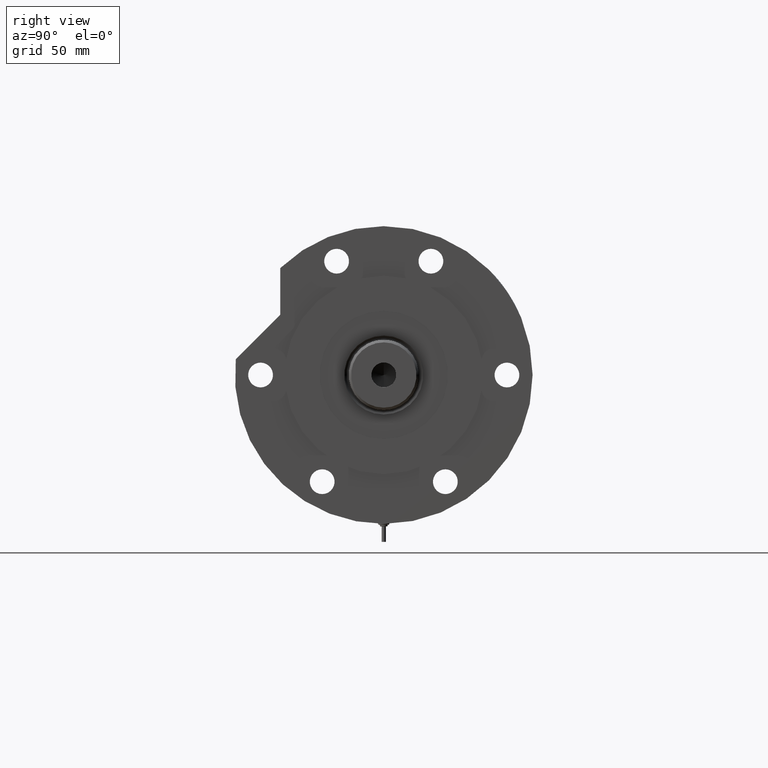
[diagram: clean part render]
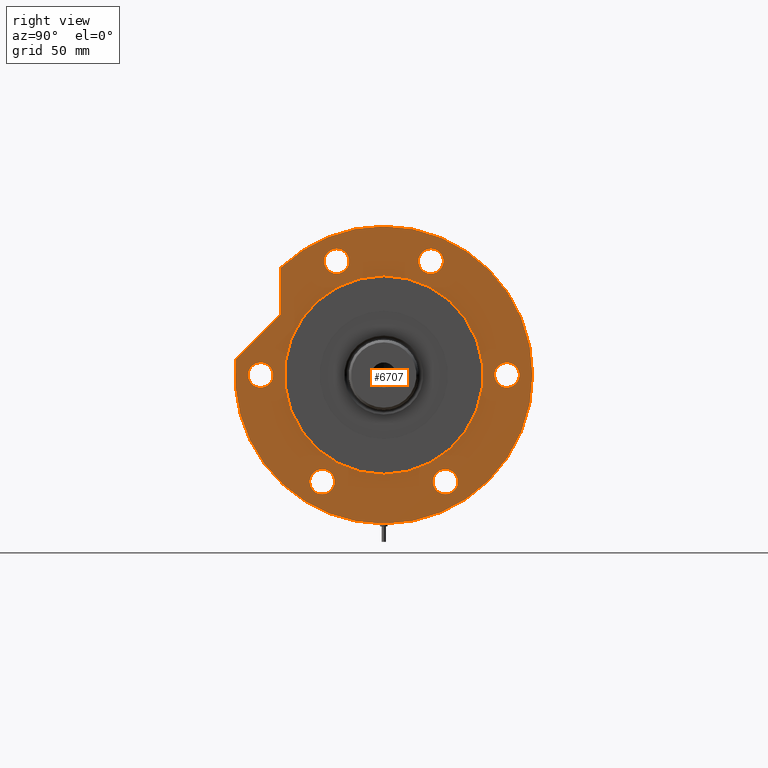
[diagram: same view with one face highlighted and labeled with its STEP entity id]
A machine part, right view. The second image highlights one B-rep face of the part: STEP entity #6707.
In plain terms, the highlighted planar face has unit normal (1, 0, -0).
Its self-contained STEP definition (entity closure, byte-faithful):
#2 = CIRCLE ( 'NONE', #6470, 7.250000000000006217 ) ;
#49 = CARTESIAN_POINT ( 'NONE',  ( 66.51932634081252615, -27.55320713028675073, 31.00000000000000000 ) ) ;
#59 = CARTESIAN_POINT ( 'NONE',  ( 66.51932634081252615, -27.55320713028675073, 31.00000000000000000 ) ) ;
#111 = DIRECTION ( 'NONE',  ( 0.000000000000000000, 0.000000000000000000, 1.000000000000000000 ) ) ;
#143 = CARTESIAN_POINT ( 'NONE',  ( -58.00000000000000000, 0.000000000000000000, 31.00000000000000000 ) ) ;
#146 = CARTESIAN_POINT ( 'NONE',  ( 0.000000000000000000, 0.000000000000000000, 31.00000000000000000 ) ) ;
#174 = VERTEX_POINT ( 'NONE', #3755 ) ;
#219 = VERTEX_POINT ( 'NONE', #143 ) ;
#305 = ORIENTED_EDGE ( 'NONE', *, *, #2279, .F. ) ;
#313 = CARTESIAN_POINT ( 'NONE',  ( 0.000000000000000000, -72.00000000000000000, 31.00000000000000000 ) ) ;
#368 = DIRECTION ( 'NONE',  ( 0.000000000000000000, 0.000000000000000000, 1.000000000000000000 ) ) ;
#403 = CIRCLE ( 'NONE', #3442, 87.00000000000000000 ) ;
#438 = AXIS2_PLACEMENT_3D ( 'NONE', #49, #6989, #1801 ) ;
#540 = EDGE_CURVE ( 'NONE', #5492, #1761, #6636, .T. ) ;
#614 = CARTESIAN_POINT ( 'NONE',  ( 7.250000000000001776, -72.00000000000000000, 31.00000000000000000 ) ) ;
#625 = EDGE_LOOP ( 'NONE', ( #1948, #6275 ) ) ;
#645 = EDGE_LOOP ( 'NONE', ( #2023, #6778 ) ) ;
#682 = DIRECTION ( 'NONE',  ( 0.000000000000000000, 0.000000000000000000, 1.000000000000000000 ) ) ;
#710 = EDGE_LOOP ( 'NONE', ( #5036, #2069 ) ) ;
#723 = DIRECTION ( 'NONE',  ( 1.000000000000000000, 0.000000000000000000, 0.000000000000000000 ) ) ;
#744 = LINE ( 'NONE', #3073, #1857 ) ;
#753 = CARTESIAN_POINT ( 'NONE',  ( -62.35382907247942086, -36.00000000000027711, 31.00000000000000000 ) ) ;
#755 = CARTESIAN_POINT ( 'NONE',  ( 0.000000000000000000, 0.000000000000000000, 31.00000000000000000 ) ) ;
#814 = VERTEX_POINT ( 'NONE', #5140 ) ;
#943 = CARTESIAN_POINT ( 'NONE',  ( -87.00000000000000000, 0.000000000000000000, 31.00000000000000000 ) ) ;
#971 = VERTEX_POINT ( 'NONE', #6187 ) ;
#985 = DIRECTION ( 'NONE',  ( 1.000000000000000000, 0.000000000000000000, 0.000000000000000000 ) ) ;
#1116 = ORIENTED_EDGE ( 'NONE', *, *, #5197, .T. ) ;
#1227 = CARTESIAN_POINT ( 'NONE',  ( -62.35382907247965534, 35.99999999999985079, 31.00000000000000000 ) ) ;
#1235 = CARTESIAN_POINT ( 'NONE',  ( -7.250000000000001776, 72.00000000000000000, 31.00000000000000000 ) ) ;
#1349 = DIRECTION ( 'NONE',  ( 1.000000000000000000, 0.000000000000000000, 0.000000000000000000 ) ) ;
#1368 = DIRECTION ( 'NONE',  ( 0.000000000000000000, 0.000000000000000000, 1.000000000000000000 ) ) ;
#1499 = AXIS2_PLACEMENT_3D ( 'NONE', #6561, #1368, #6495 ) ;
#1530 = DIRECTION ( 'NONE',  ( 0.000000000000000000, 0.000000000000000000, 1.000000000000000000 ) ) ;
#1552 = EDGE_LOOP ( 'NONE', ( #3114, #5778, #5821, #6744, #1116 ) ) ;
#1553 = VECTOR ( 'NONE', #6780, 1000.000000000000000 ) ;
#1707 = CIRCLE ( 'NONE', #6430, 58.00000000000000000 ) ;
#1761 = VERTEX_POINT ( 'NONE', #2555 ) ;
#1801 = DIRECTION ( 'NONE',  ( 1.000000000000000000, 0.000000000000000000, 0.000000000000000000 ) ) ;
#1842 = ORIENTED_EDGE ( 'NONE', *, *, #3324, .F. ) ;
#1851 = VERTEX_POINT ( 'NONE', #6979 ) ;
#1857 = VECTOR ( 'NONE', #5936, 999.9999999999998863 ) ;
#1948 = ORIENTED_EDGE ( 'NONE', *, *, #540, .F. ) ;
#2023 = ORIENTED_EDGE ( 'NONE', *, *, #5144, .F. ) ;
#2069 = ORIENTED_EDGE ( 'NONE', *, *, #5687, .F. ) ;
#2077 = FACE_BOUND ( 'NONE', #625, .T. ) ;
#2114 = DIRECTION ( 'NONE',  ( 0.000000000000000000, 0.000000000000000000, 1.000000000000000000 ) ) ;
#2239 = AXIS2_PLACEMENT_3D ( 'NONE', #3886, #5644, #5713 ) ;
#2272 = CARTESIAN_POINT ( 'NONE',  ( 7.250000000000001776, 72.00000000000000000, 31.00000000000000000 ) ) ;
#2279 = EDGE_CURVE ( 'NONE', #7315, #4631, #6873, .T. ) ;
#2402 = DIRECTION ( 'NONE',  ( 1.000000000000000000, 0.000000000000000000, 0.000000000000000000 ) ) ;
#2405 = AXIS2_PLACEMENT_3D ( 'NONE', #2816, #1530, #985 ) ;
#2481 = CARTESIAN_POINT ( 'NONE',  ( 59.26932634081251905, 27.55320713028675073, 31.00000000000000000 ) ) ;
#2508 = DIRECTION ( 'NONE',  ( 1.000000000000000000, 0.000000000000000000, 0.000000000000000000 ) ) ;
#2555 = CARTESIAN_POINT ( 'NONE',  ( 73.76932634081251194, -27.55320713028675073, 31.00000000000000000 ) ) ;
#2680 = FACE_BOUND ( 'NONE', #6603, .T. ) ;
#2705 = AXIS2_PLACEMENT_3D ( 'NONE', #6195, #3300, #3716 ) ;
#2714 = AXIS2_PLACEMENT_3D ( 'NONE', #5315, #3111, #7028 ) ;
#2765 = CARTESIAN_POINT ( 'NONE',  ( 0.000000000000000000, 60.47687547247904405, 31.00000000000000000 ) ) ;
#2801 = AXIS2_PLACEMENT_3D ( 'NONE', #753, #3082, #4760 ) ;
#2816 = CARTESIAN_POINT ( 'NONE',  ( 66.51932634081252615, 27.55320713028675073, 31.00000000000000000 ) ) ;
#2840 = EDGE_CURVE ( 'NONE', #1851, #6565, #6212, .T. ) ;
#3012 = DIRECTION ( 'NONE',  ( 0.000000000000000000, 0.000000000000000000, 1.000000000000000000 ) ) ;
#3068 = CIRCLE ( 'NONE', #2714, 7.250000000000006217 ) ;
#3073 = CARTESIAN_POINT ( 'NONE',  ( 47.85462068910451450, 47.85462068910500477, 31.00000000000000000 ) ) ;
#3075 = CARTESIAN_POINT ( 'NONE',  ( 66.51932634081252615, 27.55320713028675073, 31.00000000000000000 ) ) ;
#3077 = VERTEX_POINT ( 'NONE', #2272 ) ;
#3082 = DIRECTION ( 'NONE',  ( 0.000000000000000000, 0.000000000000000000, 1.000000000000000000 ) ) ;
#3110 = DIRECTION ( 'NONE',  ( 1.000000000000000000, 0.000000000000000000, 0.000000000000000000 ) ) ;
#3111 = DIRECTION ( 'NONE',  ( 0.000000000000000000, 0.000000000000000000, 1.000000000000000000 ) ) ;
#3114 = ORIENTED_EDGE ( 'NONE', *, *, #2840, .F. ) ;
#3139 = CARTESIAN_POINT ( 'NONE',  ( 59.26932634081251905, -27.55320713028675073, 31.00000000000000000 ) ) ;
#3150 = VERTEX_POINT ( 'NONE', #6510 ) ;
#3175 = EDGE_CURVE ( 'NONE', #219, #6767, #5078, .T. ) ;
#3195 = DIRECTION ( 'NONE',  ( 1.000000000000000000, 0.000000000000000000, 0.000000000000000000 ) ) ;
#3250 = AXIS2_PLACEMENT_3D ( 'NONE', #146, #111, #5913 ) ;
#3300 = DIRECTION ( 'NONE',  ( 0.000000000000000000, 0.000000000000000000, 1.000000000000000000 ) ) ;
#3324 = EDGE_CURVE ( 'NONE', #6767, #219, #1707, .T. ) ;
#3417 = ORIENTED_EDGE ( 'NONE', *, *, #4068, .F. ) ;
#3442 = AXIS2_PLACEMENT_3D ( 'NONE', #3599, #3012, #4868 ) ;
#3499 = DIRECTION ( 'NONE',  ( 0.000000000000000000, 0.000000000000000000, 1.000000000000000000 ) ) ;
#3537 = AXIS2_PLACEMENT_3D ( 'NONE', #59, #682, #723 ) ;
#3539 = ORIENTED_EDGE ( 'NONE', *, *, #6246, .F. ) ;
#3589 = EDGE_CURVE ( 'NONE', #3150, #814, #7279, .T. ) ;
#3599 = CARTESIAN_POINT ( 'NONE',  ( 0.000000000000000000, 0.000000000000000000, 31.00000000000000000 ) ) ;
#3632 = VERTEX_POINT ( 'NONE', #1235 ) ;
#3716 = DIRECTION ( 'NONE',  ( 1.000000000000000000, 0.000000000000000000, 0.000000000000000000 ) ) ;
#3748 = CARTESIAN_POINT ( 'NONE',  ( 73.76932634081251194, 27.55320713028675073, 31.00000000000000000 ) ) ;
#3755 = CARTESIAN_POINT ( 'NONE',  ( 9.196694222441541555, 86.51254715576759224, 31.00000000000000000 ) ) ;
#3799 = CARTESIAN_POINT ( 'NONE',  ( 58.00000000000000000, 7.102951435054648059E-15, 31.00000000000000000 ) ) ;
#3886 = CARTESIAN_POINT ( 'NONE',  ( 0.000000000000000000, 72.00000000000000000, 31.00000000000000000 ) ) ;
#3995 = VERTEX_POINT ( 'NONE', #5816 ) ;
#4058 = EDGE_CURVE ( 'NONE', #174, #1851, #744, .T. ) ;
#4068 = EDGE_CURVE ( 'NONE', #814, #3150, #5120, .T. ) ;
#4208 = ORIENTED_EDGE ( 'NONE', *, *, #5246, .F. ) ;
#4315 = CARTESIAN_POINT ( 'NONE',  ( -62.35382907247942086, -36.00000000000027711, 31.00000000000000000 ) ) ;
#4352 = DIRECTION ( 'NONE',  ( 0.000000000000000000, 0.000000000000000000, 1.000000000000000000 ) ) ;
#4367 = ORIENTED_EDGE ( 'NONE', *, *, #3175, .F. ) ;
#4621 = EDGE_CURVE ( 'NONE', #174, #7176, #6698, .T. ) ;
#4629 = AXIS2_PLACEMENT_3D ( 'NONE', #4315, #4352, #3110 ) ;
#4631 = VERTEX_POINT ( 'NONE', #2481 ) ;
#4646 = CARTESIAN_POINT ( 'NONE',  ( 0.000000000000000000, 72.00000000000000000, 31.00000000000000000 ) ) ;
#4730 = EDGE_CURVE ( 'NONE', #1761, #5492, #7063, .T. ) ;
#4760 = DIRECTION ( 'NONE',  ( 1.000000000000000000, 0.000000000000000000, 0.000000000000000000 ) ) ;
#4779 = EDGE_CURVE ( 'NONE', #3995, #7382, #5985, .T. ) ;
#4787 = CIRCLE ( 'NONE', #5749, 7.249999999999992895 ) ;
#4859 = VERTEX_POINT ( 'NONE', #7226 ) ;
#4868 = DIRECTION ( 'NONE',  ( 1.000000000000000000, 0.000000000000000000, 0.000000000000000000 ) ) ;
#4987 = FACE_BOUND ( 'NONE', #5747, .T. ) ;
#5036 = ORIENTED_EDGE ( 'NONE', *, *, #6447, .F. ) ;
#5064 = FACE_BOUND ( 'NONE', #6673, .T. ) ;
#5078 = CIRCLE ( 'NONE', #3250, 58.00000000000000000 ) ;
#5089 = EDGE_CURVE ( 'NONE', #6304, #971, #2, .T. ) ;
#5099 = FACE_BOUND ( 'NONE', #645, .T. ) ;
#5120 = CIRCLE ( 'NONE', #4629, 7.249999999999992895 ) ;
#5124 = AXIS2_PLACEMENT_3D ( 'NONE', #755, #6541, #1349 ) ;
#5140 = CARTESIAN_POINT ( 'NONE',  ( -69.60382907247941375, -36.00000000000027711, 31.00000000000000000 ) ) ;
#5144 = EDGE_CURVE ( 'NONE', #971, #6304, #3068, .T. ) ;
#5197 = EDGE_CURVE ( 'NONE', #4859, #6565, #7312, .T. ) ;
#5246 = EDGE_CURVE ( 'NONE', #7382, #3995, #5370, .T. ) ;
#5294 = CARTESIAN_POINT ( 'NONE',  ( 62.54236590573034249, 60.47687547247904405, 31.00000000000000000 ) ) ;
#5315 = CARTESIAN_POINT ( 'NONE',  ( -62.35382907247965534, 35.99999999999985079, 31.00000000000000000 ) ) ;
#5343 = EDGE_LOOP ( 'NONE', ( #3417, #5573 ) ) ;
#5351 = DIRECTION ( 'NONE',  ( 0.000000000000000000, 0.000000000000000000, 1.000000000000000000 ) ) ;
#5370 = CIRCLE ( 'NONE', #6823, 7.250000000000001776 ) ;
#5492 = VERTEX_POINT ( 'NONE', #3139 ) ;
#5494 = DIRECTION ( 'NONE',  ( 1.000000000000000000, 0.000000000000000000, 0.000000000000000000 ) ) ;
#5560 = CARTESIAN_POINT ( 'NONE',  ( 0.000000000000000000, 0.000000000000000000, 31.00000000000000000 ) ) ;
#5573 = ORIENTED_EDGE ( 'NONE', *, *, #3589, .F. ) ;
#5617 = CIRCLE ( 'NONE', #2239, 7.250000000000001776 ) ;
#5644 = DIRECTION ( 'NONE',  ( 0.000000000000000000, 0.000000000000000000, 1.000000000000000000 ) ) ;
#5687 = EDGE_CURVE ( 'NONE', #3077, #3632, #5617, .T. ) ;
#5713 = DIRECTION ( 'NONE',  ( 1.000000000000000000, 0.000000000000000000, 0.000000000000000000 ) ) ;
#5747 = EDGE_LOOP ( 'NONE', ( #4367, #1842 ) ) ;
#5749 = AXIS2_PLACEMENT_3D ( 'NONE', #3075, #6601, #2402 ) ;
#5778 = ORIENTED_EDGE ( 'NONE', *, *, #4058, .F. ) ;
#5816 = CARTESIAN_POINT ( 'NONE',  ( -7.250000000000001776, -72.00000000000000000, 31.00000000000000000 ) ) ;
#5821 = ORIENTED_EDGE ( 'NONE', *, *, #4621, .T. ) ;
#5832 = DIRECTION ( 'NONE',  ( 1.000000000000000000, 0.000000000000000000, 0.000000000000000000 ) ) ;
#5913 = DIRECTION ( 'NONE',  ( 1.000000000000000000, 0.000000000000000000, 0.000000000000000000 ) ) ;
#5936 = DIRECTION ( 'NONE',  ( 0.7071067811865511255, -0.7071067811865440200, 0.000000000000000000 ) ) ;
#5985 = CIRCLE ( 'NONE', #2705, 7.250000000000001776 ) ;
#6004 = AXIS2_PLACEMENT_3D ( 'NONE', #6134, #2114, #7419 ) ;
#6008 = CARTESIAN_POINT ( 'NONE',  ( -55.10382907247964823, 35.99999999999985079, 31.00000000000000000 ) ) ;
#6015 = ORIENTED_EDGE ( 'NONE', *, *, #4779, .F. ) ;
#6134 = CARTESIAN_POINT ( 'NONE',  ( 0.000000000000000000, 0.000000000000000000, 31.00000000000000000 ) ) ;
#6170 = FACE_BOUND ( 'NONE', #5343, .T. ) ;
#6187 = CARTESIAN_POINT ( 'NONE',  ( -69.60382907247965534, 35.99999999999985079, 31.00000000000000000 ) ) ;
#6195 = CARTESIAN_POINT ( 'NONE',  ( 0.000000000000000000, -72.00000000000000000, 31.00000000000000000 ) ) ;
#6212 = LINE ( 'NONE', #2765, #1553 ) ;
#6246 = EDGE_CURVE ( 'NONE', #4631, #7315, #4787, .T. ) ;
#6275 = ORIENTED_EDGE ( 'NONE', *, *, #4730, .F. ) ;
#6304 = VERTEX_POINT ( 'NONE', #6008 ) ;
#6430 = AXIS2_PLACEMENT_3D ( 'NONE', #5560, #368, #3195 ) ;
#6447 = EDGE_CURVE ( 'NONE', #3632, #3077, #6717, .T. ) ;
#6470 = AXIS2_PLACEMENT_3D ( 'NONE', #1227, #5351, #2508 ) ;
#6495 = DIRECTION ( 'NONE',  ( 1.000000000000000000, 0.000000000000000000, 0.000000000000000000 ) ) ;
#6510 = CARTESIAN_POINT ( 'NONE',  ( -55.10382907247942796, -36.00000000000027711, 31.00000000000000000 ) ) ;
#6541 = DIRECTION ( 'NONE',  ( 0.000000000000000000, 0.000000000000000000, 1.000000000000000000 ) ) ;
#6561 = CARTESIAN_POINT ( 'NONE',  ( 0.000000000000000000, 0.000000000000000000, 31.00000000000000000 ) ) ;
#6565 = VERTEX_POINT ( 'NONE', #5294 ) ;
#6601 = DIRECTION ( 'NONE',  ( 0.000000000000000000, 0.000000000000000000, 1.000000000000000000 ) ) ;
#6603 = EDGE_LOOP ( 'NONE', ( #6015, #4208 ) ) ;
#6636 = CIRCLE ( 'NONE', #438, 7.249999999999992895 ) ;
#6673 = EDGE_LOOP ( 'NONE', ( #3539, #305 ) ) ;
#6698 = CIRCLE ( 'NONE', #5124, 87.00000000000000000 ) ;
#6707 = ADVANCED_FACE ( 'NONE', ( #6770, #5064, #2077, #2680, #6170, #5099, #7384, #4987 ), #7302, .T. ) ;
#6712 = DIRECTION ( 'NONE',  ( 0.000000000000000000, 0.000000000000000000, 1.000000000000000000 ) ) ;
#6717 = CIRCLE ( 'NONE', #6838, 7.250000000000001776 ) ;
#6744 = ORIENTED_EDGE ( 'NONE', *, *, #7056, .T. ) ;
#6767 = VERTEX_POINT ( 'NONE', #3799 ) ;
#6770 = FACE_BOUND ( 'NONE', #710, .T. ) ;
#6778 = ORIENTED_EDGE ( 'NONE', *, *, #5089, .F. ) ;
#6780 = DIRECTION ( 'NONE',  ( 1.000000000000000000, 0.000000000000000000, -0.000000000000000000 ) ) ;
#6823 = AXIS2_PLACEMENT_3D ( 'NONE', #313, #6712, #5494 ) ;
#6838 = AXIS2_PLACEMENT_3D ( 'NONE', #4646, #3499, #5832 ) ;
#6873 = CIRCLE ( 'NONE', #2405, 7.249999999999992895 ) ;
#6979 = CARTESIAN_POINT ( 'NONE',  ( 35.23236590573035443, 60.47687547247904405, 31.00000000000000000 ) ) ;
#6989 = DIRECTION ( 'NONE',  ( 0.000000000000000000, 0.000000000000000000, 1.000000000000000000 ) ) ;
#7028 = DIRECTION ( 'NONE',  ( 1.000000000000000000, 0.000000000000000000, 0.000000000000000000 ) ) ;
#7056 = EDGE_CURVE ( 'NONE', #7176, #4859, #403, .T. ) ;
#7063 = CIRCLE ( 'NONE', #3537, 7.249999999999992895 ) ;
#7176 = VERTEX_POINT ( 'NONE', #943 ) ;
#7226 = CARTESIAN_POINT ( 'NONE',  ( 87.00000000000000000, 1.065442715258197209E-14, 31.00000000000000000 ) ) ;
#7279 = CIRCLE ( 'NONE', #2801, 7.249999999999992895 ) ;
#7302 = PLANE ( 'NONE',  #6004 ) ;
#7312 = CIRCLE ( 'NONE', #1499, 87.00000000000000000 ) ;
#7315 = VERTEX_POINT ( 'NONE', #3748 ) ;
#7382 = VERTEX_POINT ( 'NONE', #614 ) ;
#7384 = FACE_OUTER_BOUND ( 'NONE', #1552, .T. ) ;
#7419 = DIRECTION ( 'NONE',  ( 1.000000000000000000, 0.000000000000000000, -0.000000000000000000 ) ) ;